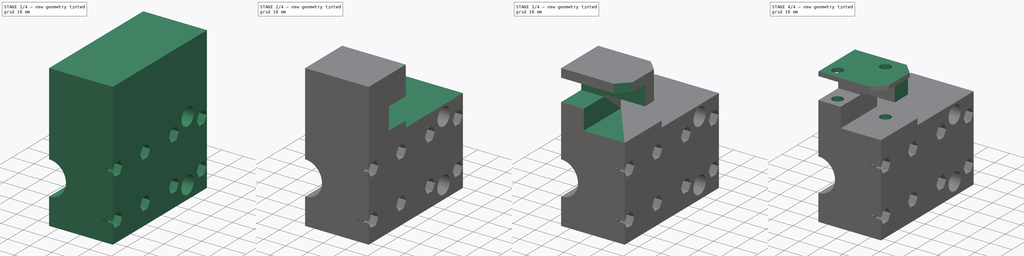
[diagram: build sequence overview — one tinted view per stage of 4, left to right]
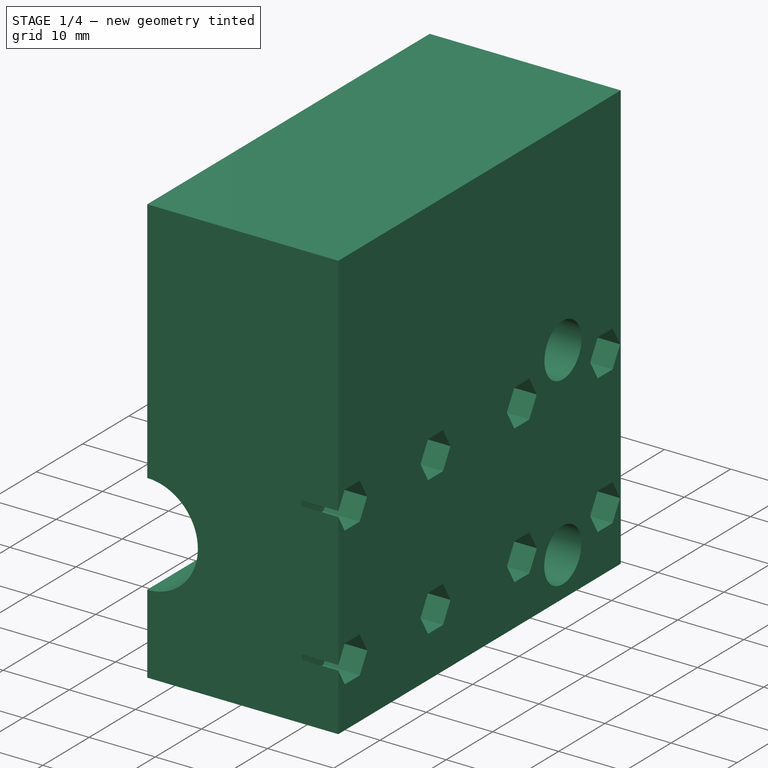
[diagram: stage 1 of 4 — iso view after this stage's code; geometry added in this stage tinted green]
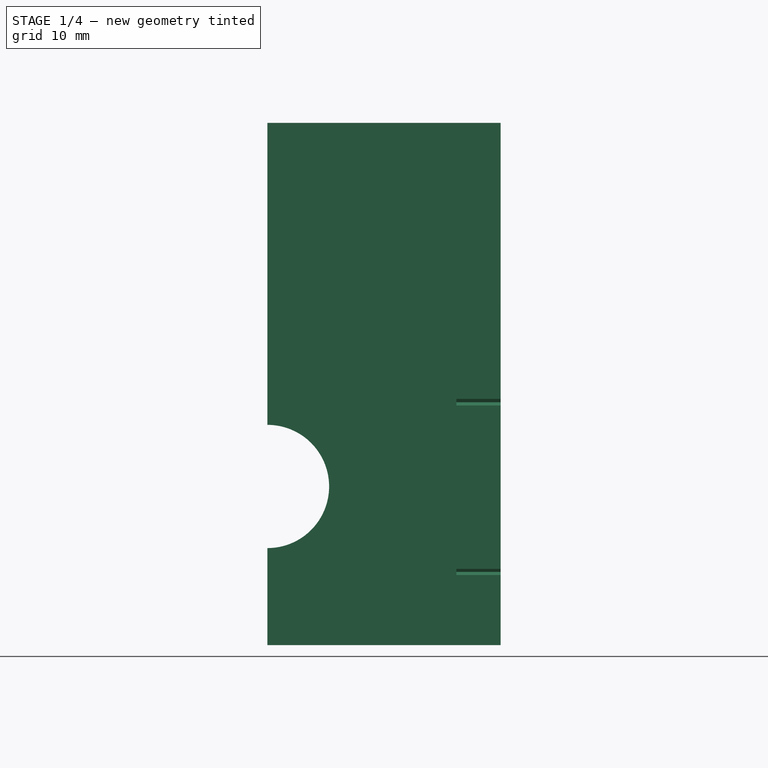
[diagram: stage 1 of 4 — front view after this stage's code; geometry added in this stage tinted green]
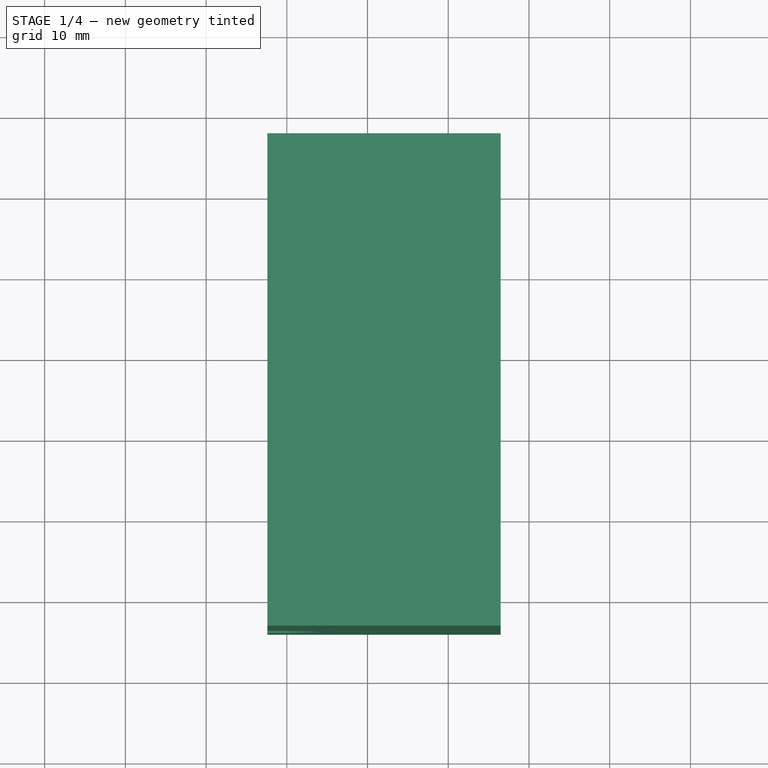
[diagram: stage 1 of 4 — top view after this stage's code; geometry added in this stage tinted green]
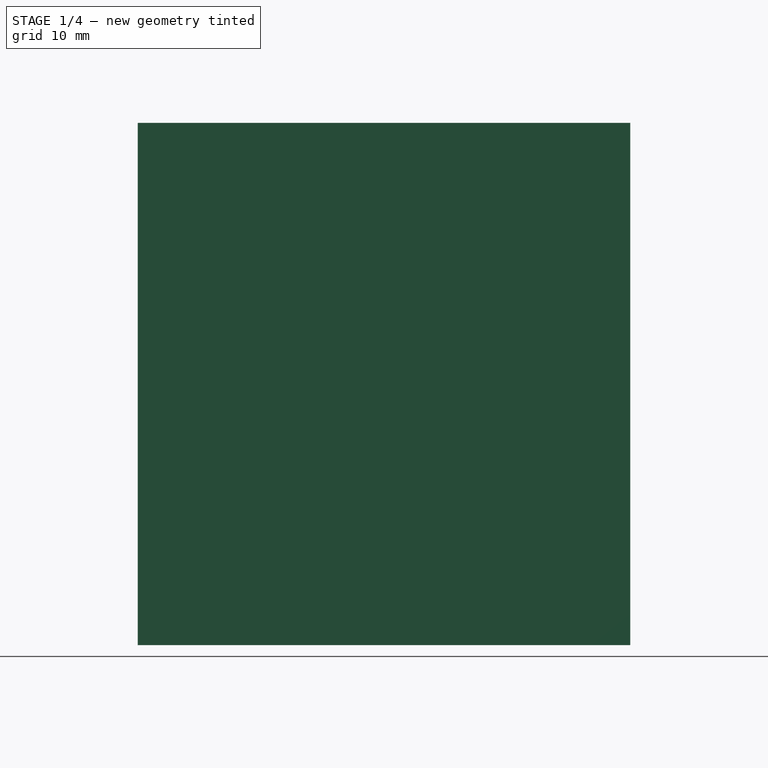
[diagram: stage 1 of 4 — right view after this stage's code; geometry added in this stage tinted green]
FCSTD DOCUMENT  (FreeCAD 2024.2R37179 (Git))
Label: Y_carriage_left
License: All rights reserved
LicenseURL: http://en.wikipedia.org/wiki/All_rights_reserved
objects: PartDesign::Pocket×13, Sketcher::SketchObject×12, PartDesign::Pad×1, PartDesign::Body×1
note: 41 computed .brp shape members not serialized (recipe doc carries the construction recipe); baked Part::Feature solids carry a one-line shape summary decoded from their .brp

FEATURE [Sketcher::SketchObject] Sketch
  AttachmentSupport = -> [XY_Plane]
  FullyConstrained = false
  MapMode = 5
  sketch-geometry (4):
    g0: LineSegment StartX=-182.406 StartY=-24 StartZ=0 EndX=-153.514 EndY=-24 EndZ=0
    g1: LineSegment StartX=-153.514 StartY=-24 StartZ=0 EndX=-153.514 EndY=37 EndZ=0
    g2: LineSegment StartX=-153.514 StartY=37 StartZ=0 EndX=-182.406 EndY=37 EndZ=0
    g3: LineSegment StartX=-182.406 StartY=37 StartZ=0 EndX=-182.406 EndY=-24 EndZ=0
  constraints (8):
    c: Coincident(g0,g1)
    c: Coincident(g1,g2)
    c: Coincident(g2,g3)
    c: Coincident(g3,g0)
    c: Horizontal(g0)
    c: Horizontal(g2)
    c: Vertical(g1)
    c: Vertical(g3)
FEATURE [PartDesign::Pad] Pad
  Direction = (0,0,1)
  Length = 64.706
  Length2 = 10
  Profile = -> Sketch
  ReferenceAxis = -> Sketch [N_Axis]
  Refine = true
  Suppressed = false
  Type = 0
FEATURE [Sketcher::SketchObject] Sketch001
  AttachmentSupport = -> [Pad]
  FullyConstrained = false
  MapMode = 5
  Placement = pos=(-153.514,0,0) rot=(0.57735,0.57735,0.57735;2.0944rad)
  sketch-geometry (56):
    g0: LineSegment StartX=0.227114 StartY=30.1177 StartZ=0 EndX=-1.38989 EndY=32.9184 EndZ=0
    g1: LineSegment StartX=-1.38989 StartY=32.9184 StartZ=0 EndX=-4.62389 EndY=32.9184 EndZ=0
    g2: LineSegment StartX=-4.62389 StartY=32.9184 StartZ=0 EndX=-6.24089 EndY=30.1177 EndZ=0
    g3: LineSegment StartX=-6.24089 StartY=30.1177 StartZ=0 EndX=-4.62389 EndY=27.317 EndZ=0
    g4: LineSegment StartX=-4.62389 StartY=27.317 StartZ=0 EndX=-1.38989 EndY=27.317 EndZ=0
    g5: LineSegment StartX=-1.38989 StartY=27.317 StartZ=0 EndX=0.227114 EndY=30.1177 EndZ=0
    g6: Circle CenterX=-3.00689 CenterY=30.1177 CenterZ=0 NormalX=0 NormalY=0 NormalZ=1 AngleXU=0 Radius=3.234
    g7: LineSegment StartX=18.8649 StartY=30.0627 StartZ=0 EndX=17.2479 EndY=32.8635 EndZ=0
    g8: LineSegment StartX=17.2479 StartY=32.8635 StartZ=0 EndX=14.0139 EndY=32.8635 EndZ=0
    g9: LineSegment StartX=14.0139 StartY=32.8635 StartZ=0 EndX=12.3969 EndY=30.0627 EndZ=0
    g10: LineSegment StartX=12.3969 StartY=30.0627 StartZ=0 EndX=14.0139 EndY=27.262 EndZ=0
    g11: LineSegment StartX=14.0139 StartY=27.262 StartZ=0 EndX=17.2479 EndY=27.262 EndZ=0
    g12: LineSegment StartX=17.2479 StartY=27.262 StartZ=0 EndX=18.8649 EndY=30.0627 EndZ=0
    g13: Circle CenterX=15.6309 CenterY=30.0627 CenterZ=0 NormalX=0 NormalY=0 NormalZ=1 AngleXU=0 Radius=3.234
    g14: LineSegment StartX=36.8705 StartY=30.0425 StartZ=0 EndX=35.2535 EndY=32.8432 EndZ=0
    g15: LineSegment StartX=35.2535 StartY=32.8432 StartZ=0 EndX=32.0195 EndY=32.8432 EndZ=0
    g16: LineSegment StartX=32.0195 StartY=32.8432 StartZ=0 EndX=30.4025 EndY=30.0425 EndZ=0
    g17: LineSegment StartX=30.4025 StartY=30.0425 StartZ=0 EndX=32.0195 EndY=27.2418 EndZ=0
    g18: LineSegment StartX=32.0195 StartY=27.2418 StartZ=0 EndX=35.2535 EndY=27.2418 EndZ=0
    g19: LineSegment StartX=35.2535 StartY=27.2418 StartZ=0 EndX=36.8705 EndY=30.0425 EndZ=0
    g20: Circle CenterX=33.6365 CenterY=30.0425 CenterZ=0 NormalX=0 NormalY=0 NormalZ=1 AngleXU=0 Radius=3.234
    g21: LineSegment StartX=-17.7521 StartY=9.07441 StartZ=0 EndX=-19.3691 EndY=11.8751 EndZ=0
    g22: LineSegment StartX=-19.3691 StartY=11.8751 StartZ=0 EndX=-22.6031 EndY=11.8751 EndZ=0
    g23: LineSegment StartX=-22.6031 StartY=11.8751 StartZ=0 EndX=-24.2201 EndY=9.07441 EndZ=0
    g24: LineSegment StartX=-24.2201 StartY=9.07441 StartZ=0 EndX=-22.6031 EndY=6.27368 EndZ=0
    g25: LineSegment StartX=-22.6031 StartY=6.27368 StartZ=0 EndX=-19.3691 EndY=6.27368 EndZ=0
    g26: LineSegment StartX=-19.3691 StartY=6.27368 StartZ=0 EndX=-17.7521 EndY=9.07441 EndZ=0
    g27: Circle CenterX=-20.9861 CenterY=9.07441 CenterZ=0 NormalX=0 NormalY=0 NormalZ=1 AngleXU=0 Radius=3.234
    g28: LineSegment StartX=0.225859 StartY=9.10068 StartZ=0 EndX=-1.39114 EndY=11.9014 EndZ=0
    g29: LineSegment StartX=-1.39114 StartY=11.9014 StartZ=0 EndX=-4.62514 EndY=11.9014 EndZ=0
    g30: LineSegment StartX=-4.62514 StartY=11.9014 StartZ=0 EndX=-6.24214 EndY=9.10068 EndZ=0
    g31: LineSegment StartX=-6.24214 StartY=9.10068 StartZ=0 EndX=-4.62514 EndY=6.29995 EndZ=0
    g32: LineSegment StartX=-4.62514 StartY=6.29995 StartZ=0 EndX=-1.39114 EndY=6.29995 EndZ=0
    g33: LineSegment StartX=-1.39114 StartY=6.29995 StartZ=0 EndX=0.225859 EndY=9.10068 EndZ=0
    g34: Circle CenterX=-3.00814 CenterY=9.10068 CenterZ=0 NormalX=0 NormalY=0 NormalZ=1 AngleXU=0 Radius=3.234
    g35: LineSegment StartX=36.8603 StartY=9.03234 StartZ=0 EndX=35.2433 EndY=11.8331 EndZ=0
    g36: LineSegment StartX=35.2433 StartY=11.8331 StartZ=0 EndX=32.0093 EndY=11.8331 EndZ=0
    g37: LineSegment StartX=32.0093 StartY=11.8331 StartZ=0 EndX=30.3923 EndY=9.03234 EndZ=0
    g38: LineSegment StartX=30.3923 StartY=9.03234 StartZ=0 EndX=32.0093 EndY=6.23161 EndZ=0
    g39: LineSegment StartX=32.0093 StartY=6.23161 StartZ=0 EndX=35.2433 EndY=6.23161 EndZ=0
    g40: LineSegment StartX=35.2433 StartY=6.23161 StartZ=0 EndX=36.8603 EndY=9.03234 EndZ=0
    g41: Circle CenterX=33.6263 CenterY=9.03234 CenterZ=0 NormalX=0 NormalY=0 NormalZ=1 AngleXU=0 Radius=3.234
    g42: LineSegment StartX=18.8907 StartY=9.033 StartZ=0 EndX=17.2737 EndY=11.8337 EndZ=0
    g43: LineSegment StartX=17.2737 StartY=11.8337 StartZ=0 EndX=14.0397 EndY=11.8337 EndZ=0
    g44: LineSegment StartX=14.0397 StartY=11.8337 StartZ=0 EndX=12.4227 EndY=9.033 EndZ=0
    g45: LineSegment StartX=12.4227 StartY=9.033 StartZ=0 EndX=14.0397 EndY=6.23227 EndZ=0
    g46: LineSegment StartX=14.0397 StartY=6.23227 StartZ=0 EndX=17.2737 EndY=6.23227 EndZ=0
    g47: LineSegment StartX=17.2737 StartY=6.23227 StartZ=0 EndX=18.8907 EndY=9.033 EndZ=0
    g48: Circle CenterX=15.6567 CenterY=9.033 CenterZ=0 NormalX=0 NormalY=0 NormalZ=1 AngleXU=0 Radius=3.234
    g49: LineSegment StartX=-17.7704 StartY=30.0953 StartZ=0 EndX=-19.3874 EndY=32.896 EndZ=0
    g50: LineSegment StartX=-19.3874 StartY=32.896 StartZ=0 EndX=-22.6214 EndY=32.896 EndZ=0
    g51: LineSegment StartX=-22.6214 StartY=32.896 StartZ=0 EndX=-24.2384 EndY=30.0953 EndZ=0
    g52: LineSegment StartX=-24.2384 StartY=30.0953 StartZ=0 EndX=-22.6214 EndY=27.2945 EndZ=0
    g53: LineSegment StartX=-22.6214 StartY=27.2945 StartZ=0 EndX=-19.3874 EndY=27.2945 EndZ=0
    g54: LineSegment StartX=-19.3874 StartY=27.2945 StartZ=0 EndX=-17.7704 EndY=30.0953 EndZ=0
    g55: Circle CenterX=-21.0044 CenterY=30.0953 CenterZ=0 NormalX=0 NormalY=0 NormalZ=1 AngleXU=0 Radius=3.234
  constraints (112):
    c: Coincident(g0,g1)
    c: Coincident(g1,g2)
    c: Coincident(g2,g3)
    c: Coincident(g3,g4)
    c: Coincident(g4,g5)
    c: Coincident(g5,g0)
    c: Equal(g0, g1-g5) x5
    c: PointOnObject(g0,g6)
    c: PointOnObject(g1,g6)
    c: PointOnObject(g2,g6)
    c: PointOnObject(g3,g6)
    c: PointOnObject(g4,g6)
    c: PointOnObject(g5,g6)
    c: Radius(g6) = 3.234
    c: Coincident(g7,g8)
    c: Coincident(g8,g9)
    c: Coincident(g9,g10)
    c: Coincident(g10,g11)
    c: Coincident(g11,g12)
    c: Coincident(g12,g7)
    c: Equal(g7, g8-g12) x5
    c: PointOnObject(g7,g13)
    c: PointOnObject(g8,g13)
    c: PointOnObject(g9,g13)
    c: PointOnObject(g10,g13)
    c: PointOnObject(g11,g13)
    c: PointOnObject(g12,g13)
    c: Radius(g13) = 3.234
    c: Coincident(g14,g15)
    c: Coincident(g15,g16)
    c: Coincident(g16,g17)
    c: Coincident(g17,g18)
    c: Coincident(g18,g19)
    c: Coincident(g19,g14)
    c: Equal(g14, g15-g19) x5
    c: PointOnObject(g14,g20)
    c: PointOnObject(g15,g20)
    c: PointOnObject(g16,g20)
    c: PointOnObject(g17,g20)
    c: PointOnObject(g18,g20)
    c: PointOnObject(g19,g20)
    c: Radius(g20) = 3.234
    c: Coincident(g21,g22)
    c: Coincident(g22,g23)
    c: Coincident(g23,g24)
    c: Coincident(g24,g25)
    c: Coincident(g25,g26)
    c: Coincident(g26,g21)
    c: Equal(g21, g22-g26) x5
    c: PointOnObject(g21,g27)
    c: PointOnObject(g22,g27)
    c: PointOnObject(g23,g27)
    c: PointOnObject(g24,g27)
    c: PointOnObject(g25,g27)
    c: PointOnObject(g26,g27)
    c: Radius(g27) = 3.234
    c: Coincident(g28,g29)
    c: Coincident(g29,g30)
    c: Coincident(g30,g31)
    c: Coincident(g31,g32)
    c: Coincident(g32,g33)
    c: Coincident(g33,g28)
    c: Equal(g28, g29-g33) x5
    c: PointOnObject(g28,g34)
    c: PointOnObject(g29,g34)
    c: PointOnObject(g30,g34)
    c: PointOnObject(g31,g34)
    c: PointOnObject(g32,g34)
    c: PointOnObject(g33,g34)
    c: Radius(g34) = 3.234
    c: Coincident(g35,g36)
    c: Coincident(g36,g37)
    c: Coincident(g37,g38)
    c: Coincident(g38,g39)
    c: Coincident(g39,g40)
    c: Coincident(g40,g35)
    c: Equal(g35, g36-g40) x5
    c: PointOnObject(g35,g41)
    c: PointOnObject(g36,g41)
    c: PointOnObject(g37,g41)
    c: PointOnObject(g38,g41)
    c: PointOnObject(g39,g41)
    c: PointOnObject(g40,g41)
    c: Radius(g41) = 3.234
    c: Coincident(g42,g43)
    c: Coincident(g43,g44)
    c: Coincident(g44,g45)
    c: Coincident(g45,g46)
    c: Coincident(g46,g47)
    c: Coincident(g47,g42)
    c: Equal(g42, g43-g47) x5
    c: PointOnObject(g42,g48)
    c: PointOnObject(g43,g48)
    c: PointOnObject(g44,g48)
    c: PointOnObject(g45,g48)
    c: PointOnObject(g46,g48)
    c: PointOnObject(g47,g48)
    c: Radius(g48) = 3.234
    c: Coincident(g49,g50)
    c: Coincident(g50,g51)
    c: Coincident(g51,g52)
    c: Coincident(g52,g53)
    c: Coincident(g53,g54)
    c: Coincident(g54,g49)
    c: Equal(g49, g50-g54) x5
    c: PointOnObject(g49,g55)
    c: PointOnObject(g50,g55)
    c: PointOnObject(g51,g55)
    c: PointOnObject(g52,g55)
    c: PointOnObject(g53,g55)
    c: PointOnObject(g54,g55)
    c: Radius(g55) = 3.234
FEATURE [PartDesign::Pocket] Pocket
  BaseFeature = -> Pad
  Direction = (-1,0,0)
  Length = 5.486
  Length2 = 5
  Profile = -> Sketch001
  ReferenceAxis = -> Sketch001 [N_Axis]
  Refine = true
  Suppressed = false
  Type = 0
FEATURE [Sketcher::SketchObject] Sketch002
  AttachmentSupport = -> [Pocket]
  FullyConstrained = false
  MapMode = 5
  Placement = pos=(-153.514,0,0) rot=(0.57735,0.57735,0.57735;2.0944rad)
  sketch-geometry (2):
    g0: Circle CenterX=24.5259 CenterY=33.9789 CenterZ=0 NormalX=0 NormalY=0 NormalZ=1 AngleXU=0 Radius=4.00076
    g1: Circle CenterX=24.4831 CenterY=5.98717 CenterZ=0 NormalX=0 NormalY=0 NormalZ=1 AngleXU=0 Radius=4.0009
FEATURE [PartDesign::Pocket] Pocket013
  BaseFeature = -> Pocket
  Direction = (-1,0,0)
  Length = 28.147
  Length2 = 5
  Profile = -> Sketch002
  ReferenceAxis = -> Sketch002 [N_Axis]
  Refine = true
  Suppressed = false
  Type = 0
FEATURE [Sketcher::SketchObject] Sketch003
  AttachmentSupport = -> [Pocket013]
  FullyConstrained = false
  MapMode = 5
  Placement = pos=(0,-24,0) rot=(1,0,0;1.5708rad)
  sketch-geometry (1):
    g0: Circle CenterX=-182.393 CenterY=19.6585 CenterZ=0 NormalX=0 NormalY=0 NormalZ=1 AngleXU=0 Radius=7.63388
FEATURE [PartDesign::Pocket] Pocket014
  BaseFeature = -> Pocket013
  Direction = (0,1,-2e-16)
  Length = 90
  Length2 = 5
  Profile = -> Sketch003
  ReferenceAxis = -> Sketch003 [N_Axis]
  Refine = true
  Suppressed = false
  Type = 0
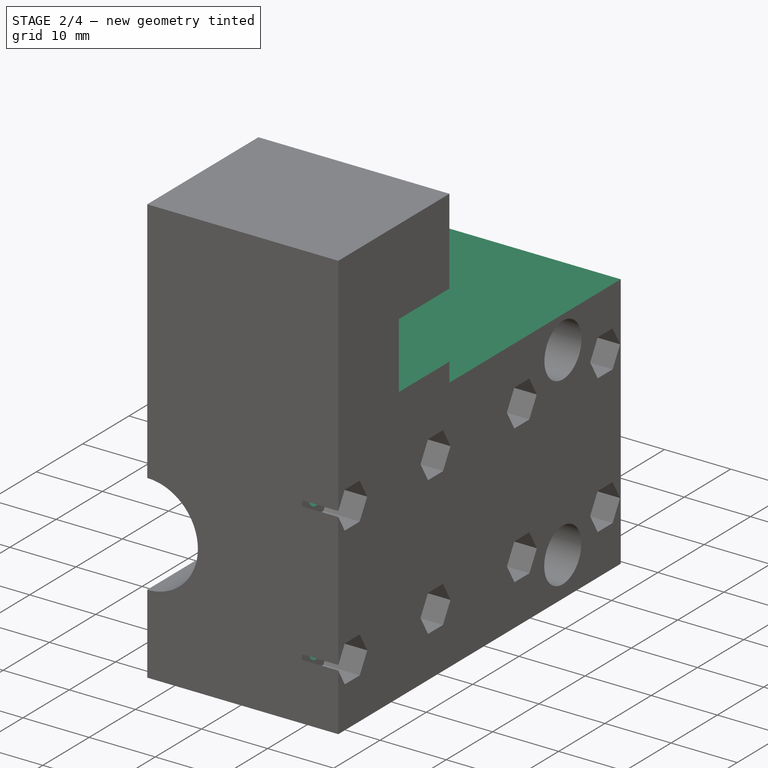
[diagram: stage 2 of 4 — iso view after this stage's code; geometry added in this stage tinted green]
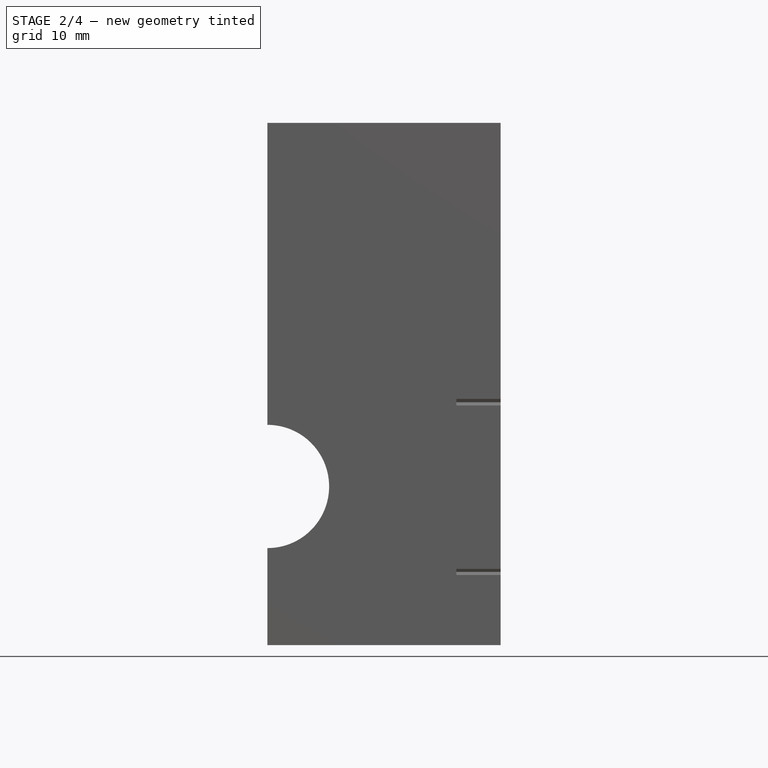
[diagram: stage 2 of 4 — front view after this stage's code; geometry added in this stage tinted green]
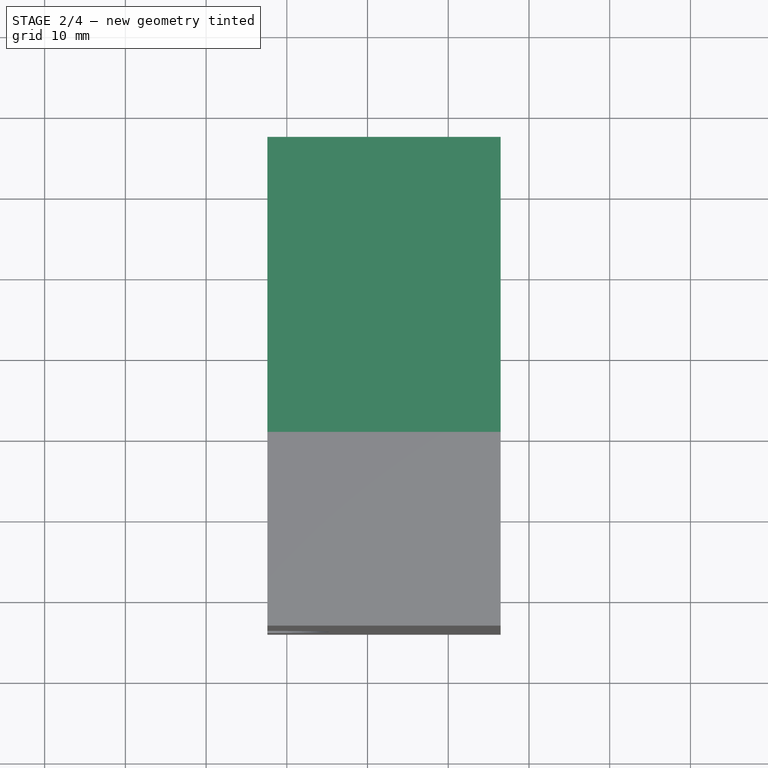
[diagram: stage 2 of 4 — top view after this stage's code; geometry added in this stage tinted green]
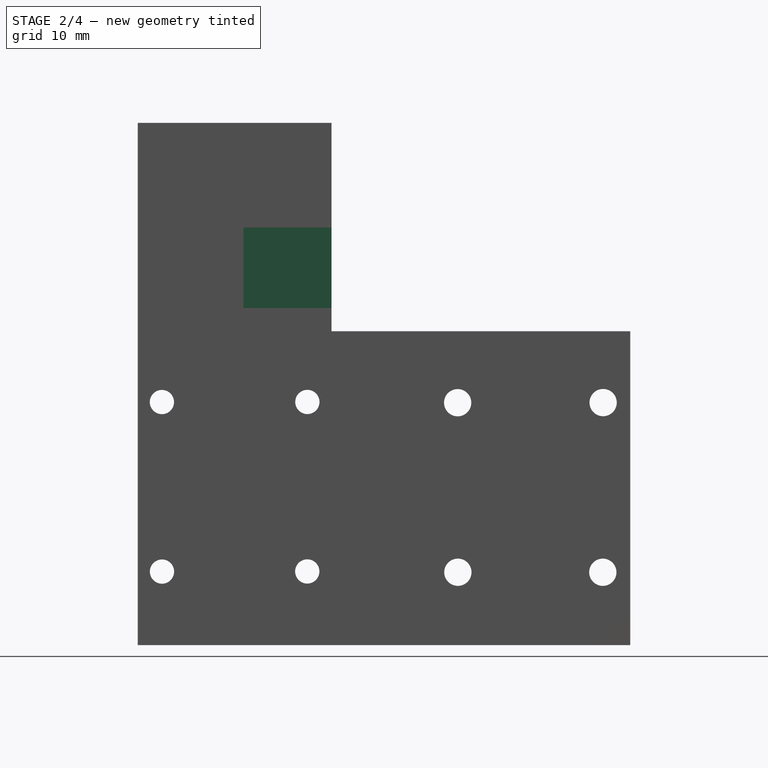
[diagram: stage 2 of 4 — right view after this stage's code; geometry added in this stage tinted green]
FEATURE [Sketcher::SketchObject] Sketch004
  AttachmentSupport = -> [Pocket014]
  FullyConstrained = false
  MapMode = 5
  Placement = pos=(-153.514,0,0) rot=(0.57735,0.57735,0.57735;2.0944rad)
  sketch-geometry (8):
    g0: Circle CenterX=-2.99299 CenterY=30.1285 CenterZ=0 NormalX=0 NormalY=0 NormalZ=1 AngleXU=0 Radius=1.50159
    g1: Circle CenterX=15.6504 CenterY=9.03195 CenterZ=0 NormalX=0 NormalY=0 NormalZ=1 AngleXU=0 Radius=1.68885
    g2: Circle CenterX=-21.0035 CenterY=9.11299 CenterZ=0 NormalX=0 NormalY=0 NormalZ=1 AngleXU=0 Radius=1.50159
    g3: Circle CenterX=-3.00721 CenterY=9.1307 CenterZ=0 NormalX=0 NormalY=0 NormalZ=1 AngleXU=0 Radius=1.50159
    g4: Circle CenterX=-21.0145 CenterY=30.1173 CenterZ=0 NormalX=0 NormalY=0 NormalZ=1 AngleXU=0 Radius=1.50159
    g5: Circle CenterX=33.6456 CenterY=30.0497 CenterZ=0 NormalX=0 NormalY=0 NormalZ=1 AngleXU=0 Radius=1.68885
    g6: Circle CenterX=33.6065 CenterY=9.03112 CenterZ=0 NormalX=0 NormalY=0 NormalZ=1 AngleXU=0 Radius=1.68885
    g7: Circle CenterX=15.6252 CenterY=30.0364 CenterZ=0 NormalX=0 NormalY=0 NormalZ=1 AngleXU=0 Radius=1.68885
FEATURE [PartDesign::Pocket] Pocket015
  BaseFeature = -> Pocket014
  Direction = (-1,0,0)
  Length = 71
  Length2 = 5
  Profile = -> Sketch004
  ReferenceAxis = -> Sketch004 [N_Axis]
  Refine = true
  Suppressed = false
  Type = 0
FEATURE [Sketcher::SketchObject] Sketch005
  AttachmentSupport = -> [Pocket015]
  FullyConstrained = false
  MapMode = 5
  Placement = pos=(-153.514,0,0) rot=(0.57735,0.57735,0.57735;2.0944rad)
  sketch-geometry (4):
    g0: LineSegment StartX=0 StartY=38.8812 StartZ=0 EndX=61.9401 EndY=38.8812 EndZ=0
    g1: LineSegment StartX=61.9401 StartY=38.8812 StartZ=0 EndX=61.9401 EndY=97.7584 EndZ=0
    g2: LineSegment StartX=61.9401 StartY=97.7584 StartZ=0 EndX=0 EndY=97.7584 EndZ=0
    g3: LineSegment StartX=0 StartY=97.7584 StartZ=0 EndX=0 EndY=38.8812 EndZ=0
  constraints (9):
    c: Coincident(g0,g1)
    c: Coincident(g1,g2)
    c: Coincident(g2,g3)
    c: Coincident(g3,g0)
    c: Horizontal(g0)
    c: Horizontal(g2)
    c: Vertical(g1)
    c: Vertical(g3)
    c: PointOnObject(g0,g-2)
FEATURE [PartDesign::Pocket] Pocket016
  BaseFeature = -> Pocket015
  Direction = (-1,0,0)
  Length = 34
  Length2 = 5
  Profile = -> Sketch005
  ReferenceAxis = -> Sketch005 [N_Axis]
  Refine = true
  Suppressed = false
  Type = 0
FEATURE [Sketcher::SketchObject] Sketch006
  AttachmentSupport = -> [Pocket016]
  FullyConstrained = false
  MapMode = 5
  Placement = pos=(-153.514,0,0) rot=(0.57735,0.57735,0.57735;2.0944rad)
  sketch-geometry (4):
    g0: LineSegment StartX=-10.9051 StartY=51.7478 StartZ=0 EndX=-10.9051 EndY=41.7667 EndZ=0
    g1: LineSegment StartX=-10.9051 StartY=41.7667 StartZ=0 EndX=0.659493 EndY=41.7667 EndZ=0
    g2: LineSegment StartX=0.659493 StartY=41.7667 StartZ=0 EndX=0.659493 EndY=51.7478 EndZ=0
    g3: LineSegment StartX=0.659493 StartY=51.7478 StartZ=0 EndX=-10.9051 EndY=51.7478 EndZ=0
  constraints (8):
    c: Coincident(g0,g1)
    c: Coincident(g1,g2)
    c: Coincident(g2,g3)
    c: Coincident(g3,g0)
    c: Vertical(g0)
    c: Vertical(g2)
    c: Horizontal(g1)
    c: Horizontal(g3)
FEATURE [PartDesign::Pocket] Pocket017
  BaseFeature = -> Pocket016
  Direction = (-1,0,0)
  Length = 18.59
  Length2 = 5
  Profile = -> Sketch006
  ReferenceAxis = -> Sketch006 [N_Axis]
  Refine = true
  Suppressed = false
  Type = 0
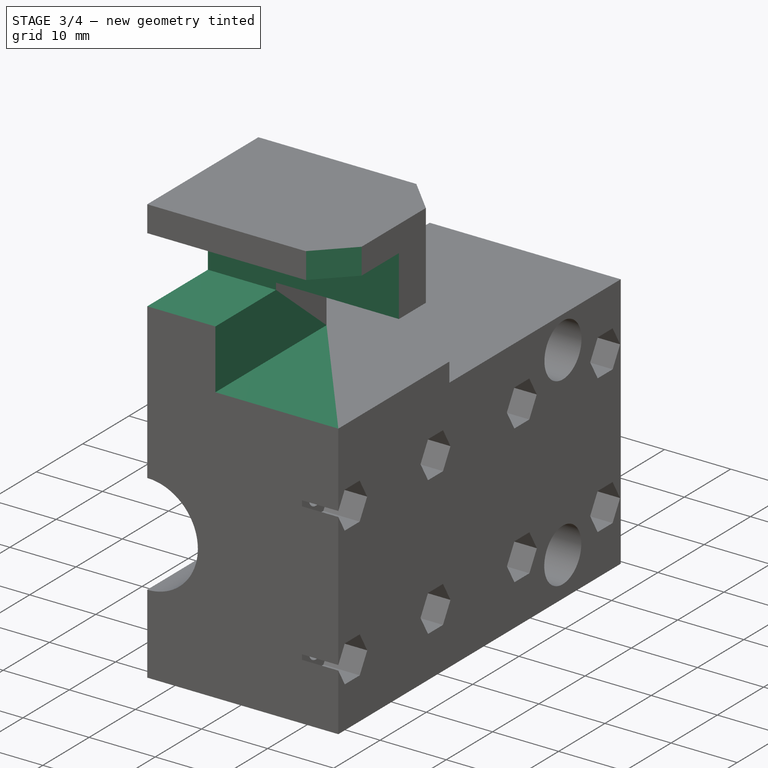
[diagram: stage 3 of 4 — iso view after this stage's code; geometry added in this stage tinted green]
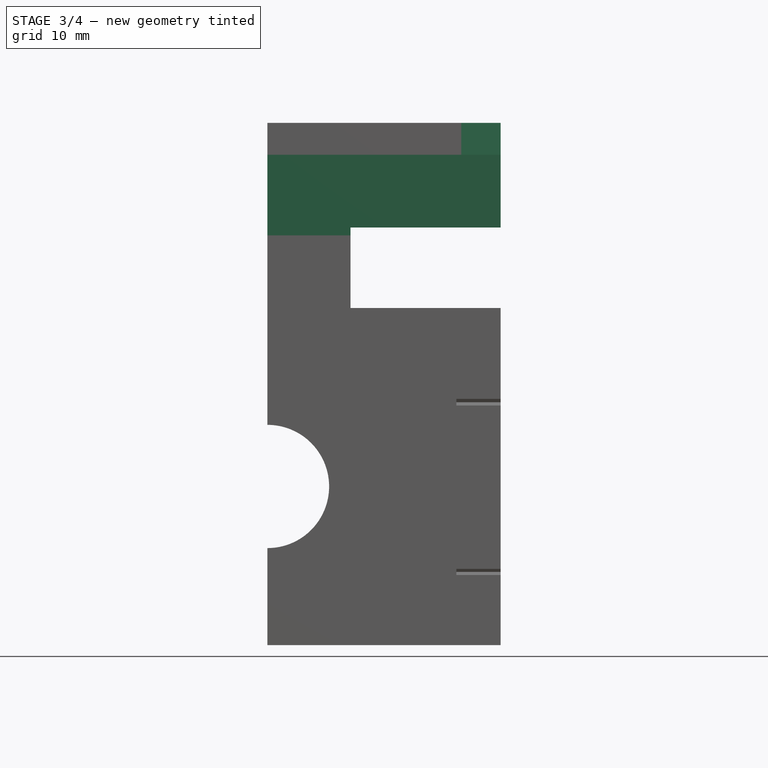
[diagram: stage 3 of 4 — front view after this stage's code; geometry added in this stage tinted green]
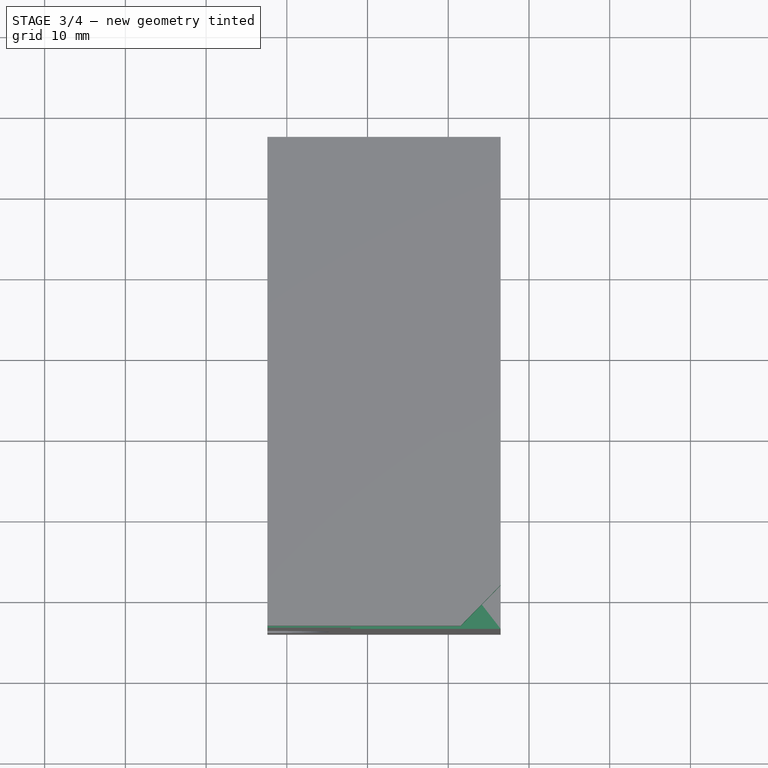
[diagram: stage 3 of 4 — top view after this stage's code; geometry added in this stage tinted green]
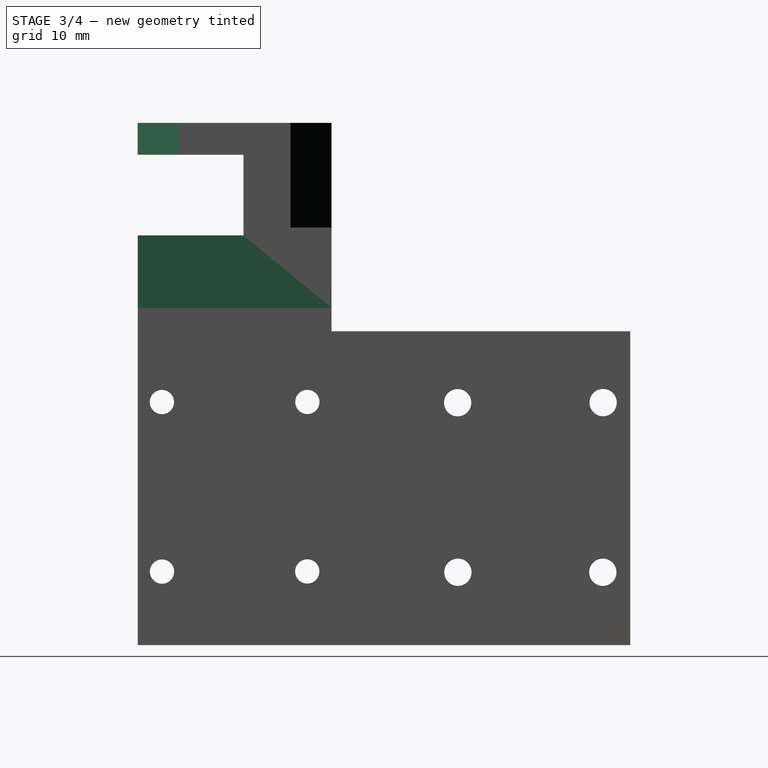
[diagram: stage 3 of 4 — right view after this stage's code; geometry added in this stage tinted green]
FEATURE [Sketcher::SketchObject] Sketch007
  AttachmentSupport = -> [Pocket017]
  FullyConstrained = false
  MapMode = 5
  Placement = pos=(0,0,64.706) rot=(0,0,1;0rad)
  sketch-geometry (6):
    g0: LineSegment StartX=-158.429 StartY=-23.9703 StartZ=0 EndX=-153.252 EndY=-18.7031 EndZ=0
    g1: LineSegment StartX=-153.252 StartY=-18.7031 StartZ=0 EndX=-151.098 EndY=-28.6993 EndZ=0
    g2: LineSegment StartX=-151.098 StartY=-28.6993 StartZ=0 EndX=-158.429 EndY=-23.9703 EndZ=0
    g3: LineSegment StartX=-153.521 StartY=-5.08418 StartZ=0 EndX=-159.13 EndY=0.622078 EndZ=0
    g4: LineSegment StartX=-159.13 StartY=0.622078 StartZ=0 EndX=-148.158 EndY=1.03342 EndZ=0
    g5: LineSegment StartX=-148.158 StartY=1.03342 StartZ=0 EndX=-153.521 EndY=-5.08418 EndZ=0
  constraints (6):
    c: Coincident(g0,g1)
    c: Coincident(g1,g2)
    c: Coincident(g2,g0)
    c: Coincident(g3,g4)
    c: Coincident(g4,g5)
    c: Coincident(g5,g3)
FEATURE [PartDesign::Pocket] Pocket018
  BaseFeature = -> Pocket017
  Direction = (0,0,-1)
  Length = 14
  Length2 = 5
  Profile = -> Sketch007
  ReferenceAxis = -> Sketch007 [N_Axis]
  Refine = true
  Suppressed = false
  Type = 0
FEATURE [Sketcher::SketchObject] Sketch008
  AttachmentSupport = -> [Pocket018]
  FullyConstrained = false
  MapMode = 5
  Placement = pos=(-182.406,0,0) rot=(0.57735,-0.57735,-0.57735;2.0944rad)
  sketch-geometry (4):
    g0: LineSegment StartX=10.9066 StartY=50.7605 StartZ=0 EndX=24.0004 EndY=50.7605 EndZ=0
    g1: LineSegment StartX=24.0004 StartY=50.7605 StartZ=0 EndX=24.0004 EndY=60.7599 EndZ=0
    g2: LineSegment StartX=24.0004 StartY=60.7599 StartZ=0 EndX=10.9066 EndY=60.7599 EndZ=0
    g3: LineSegment StartX=10.9066 StartY=60.7599 StartZ=0 EndX=10.9066 EndY=50.7605 EndZ=0
  constraints (8):
    c: Coincident(g0,g1)
    c: Coincident(g1,g2)
    c: Coincident(g2,g3)
    c: Coincident(g3,g0)
    c: Horizontal(g0)
    c: Horizontal(g2)
    c: Vertical(g1)
    c: Vertical(g3)
FEATURE [PartDesign::Pocket] Pocket019
  BaseFeature = -> Pocket018
  Direction = (1,0,0)
  Length = 38
  Length2 = 5
  Profile = -> Sketch008
  ReferenceAxis = -> Sketch008 [N_Axis]
  Refine = true
  Suppressed = false
  Type = 0
FEATURE [PartDesign::Pocket] Pocket020
  BaseFeature = -> Pocket019
  Direction = (0,-1,0)
  Length = 21
  Length2 = 5
  Profile = -> Pocket019 [Face20]
  Refine = true
  Suppressed = false
  Type = 0
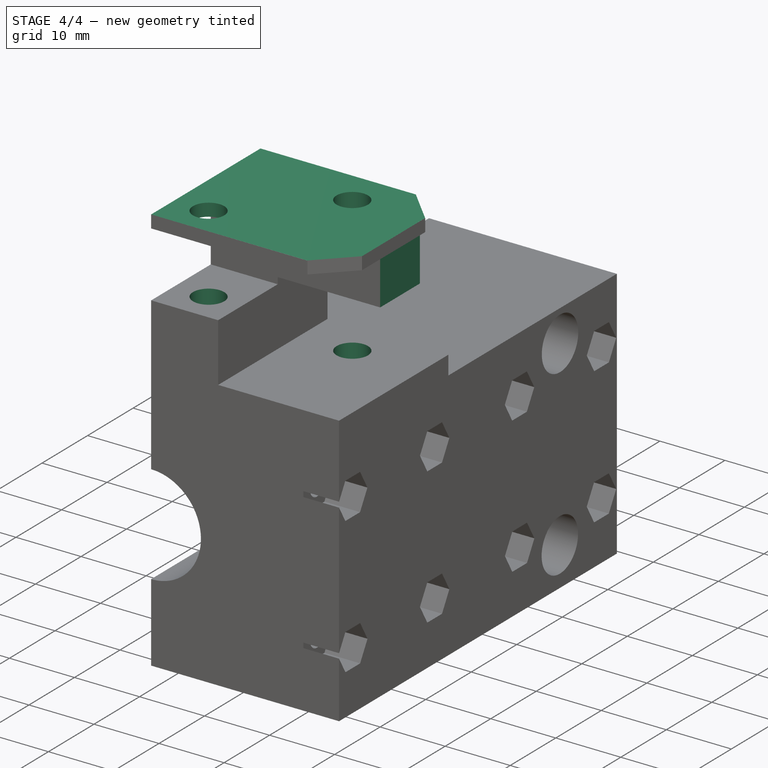
[diagram: stage 4 of 4 — iso view after this stage's code; geometry added in this stage tinted green]
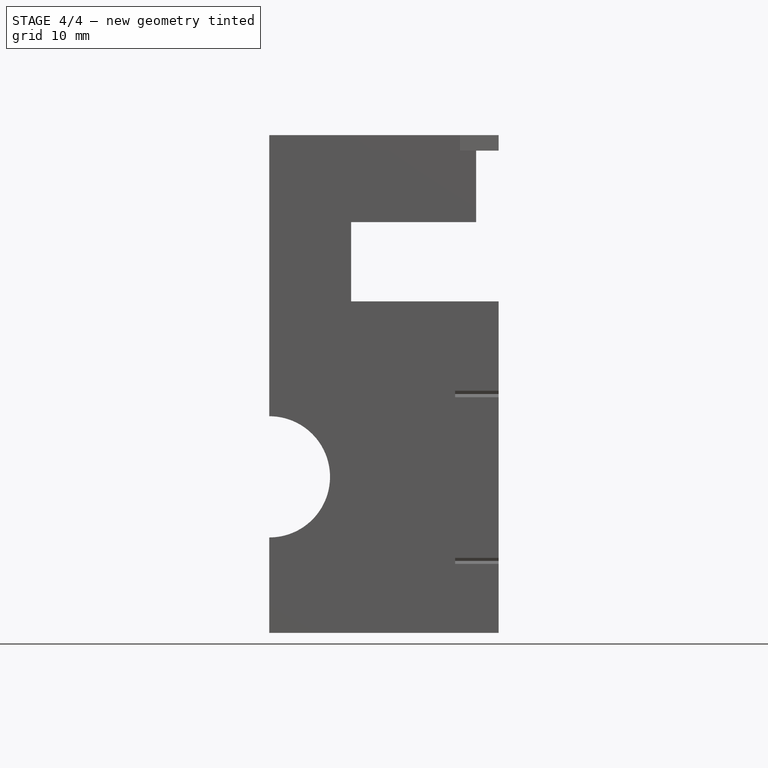
[diagram: stage 4 of 4 — front view after this stage's code; geometry added in this stage tinted green]
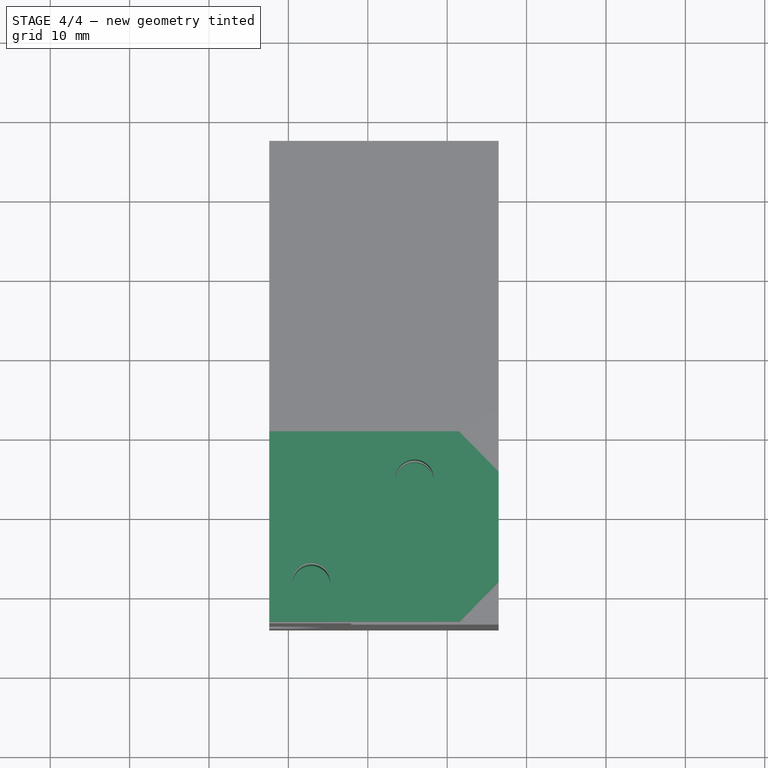
[diagram: stage 4 of 4 — top view after this stage's code; geometry added in this stage tinted green]
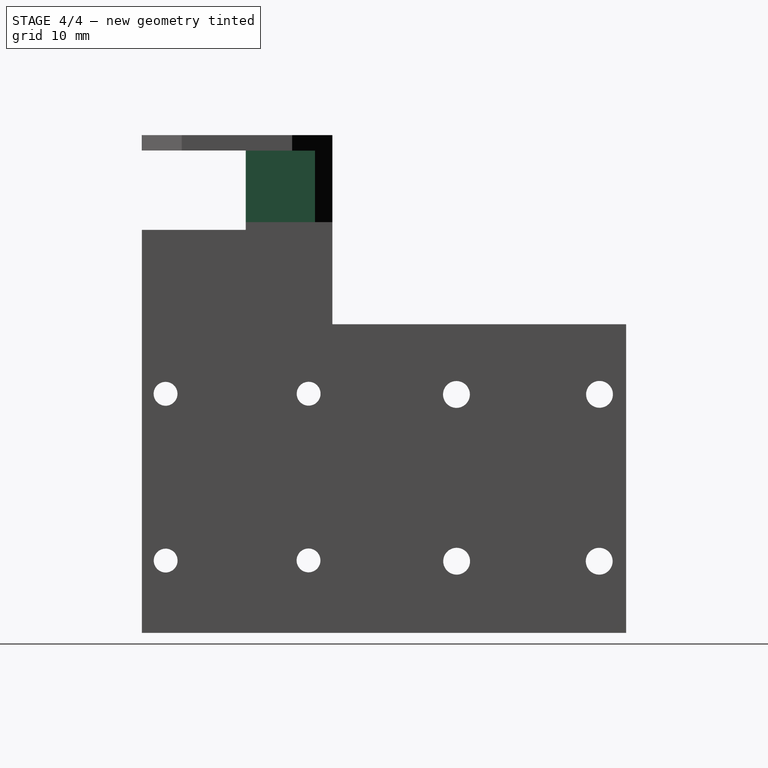
[diagram: stage 4 of 4 — right view after this stage's code; geometry added in this stage tinted green]
FEATURE [Sketcher::SketchObject] Sketch009
  AttachmentSupport = -> [Pocket020]
  FullyConstrained = false
  MapMode = 5
  Placement = pos=(0,0,64.706) rot=(0,0,1;0rad)
  sketch-geometry (1):
    g0: Circle CenterX=-177.111 CenterY=-18.9478 CenterZ=0 NormalX=0 NormalY=0 NormalZ=1 AngleXU=0 Radius=2.4005
FEATURE [PartDesign::Pocket] Pocket021
  BaseFeature = -> Pocket020
  Direction = (0,0,-1)
  Length = 27.202
  Length2 = 5
  Profile = -> Sketch009
  ReferenceAxis = -> Sketch009 [N_Axis]
  Refine = true
  Suppressed = false
  Type = 0
FEATURE [Sketcher::SketchObject] Sketch010
  AttachmentSupport = -> [Pocket021]
  FullyConstrained = false
  MapMode = 5
  Placement = pos=(0,0,64.706) rot=(0,0,1;0rad)
  sketch-geometry (1):
    g0: Circle CenterX=-164.117 CenterY=-5.94823 CenterZ=0 NormalX=0 NormalY=0 NormalZ=1 AngleXU=0 Radius=2.40903
FEATURE [PartDesign::Pocket] Pocket022
  BaseFeature = -> Pocket021
  Direction = (0,0,-1)
  Length = 27.378
  Length2 = 5
  Profile = -> Sketch010
  ReferenceAxis = -> Sketch010 [N_Axis]
  Refine = true
  Suppressed = false
  Type = 0
FEATURE [Sketcher::SketchObject] Sketch011
  AttachmentSupport = -> [Pocket022]
  FullyConstrained = false
  MapMode = 5
  Placement = pos=(0,-24,0) rot=(1,0,0;1.5708rad)
  sketch-geometry (4):
    g0: LineSegment StartX=-152.924 StartY=51.0893 StartZ=0 EndX=-152.924 EndY=60.752 EndZ=0
    g1: LineSegment StartX=-152.924 StartY=60.752 StartZ=0 EndX=-156.358 EndY=60.752 EndZ=0
    g2: LineSegment StartX=-156.358 StartY=60.752 StartZ=0 EndX=-156.358 EndY=51.0893 EndZ=0
    g3: LineSegment StartX=-156.358 StartY=51.0893 StartZ=0 EndX=-152.924 EndY=51.0893 EndZ=0
  constraints (8):
    c: Coincident(g0,g1)
    c: Coincident(g1,g2)
    c: Coincident(g2,g3)
    c: Coincident(g3,g0)
    c: Vertical(g0)
    c: Vertical(g2)
    c: Horizontal(g1)
    c: Horizontal(g3)
FEATURE [PartDesign::Pocket] Pocket023
  BaseFeature = -> Pocket022
  Direction = (0,1,-2e-16)
  Length = 54
  Length2 = 5
  Profile = -> Sketch011
  ReferenceAxis = -> Sketch011 [N_Axis]
  Refine = true
  Suppressed = false
  Type = 0
FEATURE [PartDesign::Pocket] Pocket024
  BaseFeature = -> Pocket023
  Direction = (0,0,-1)
  Length = 2
  Length2 = 5
  Profile = -> Pocket023 [Face73]
  Refine = true
  Suppressed = false
  Type = 0
FEATURE [PartDesign::Body] Body
  Group = -> [Sketch,Pad,Sketch001,Pocket,Sketch002,Pocket013,Sketch003,Pocket014,Sketch004,Pocket015,Sketch005,Pocket016,Sketch006,Pocket017,Sketch007,Pocket018,Sketch008,Pocket019,Pocket020,Sketch009,Pocket021,Sketch010,Pocket022,Sketch011,Pocket023,Pocket024]
  Origin = -> Origin
  Tip = -> Pocket024
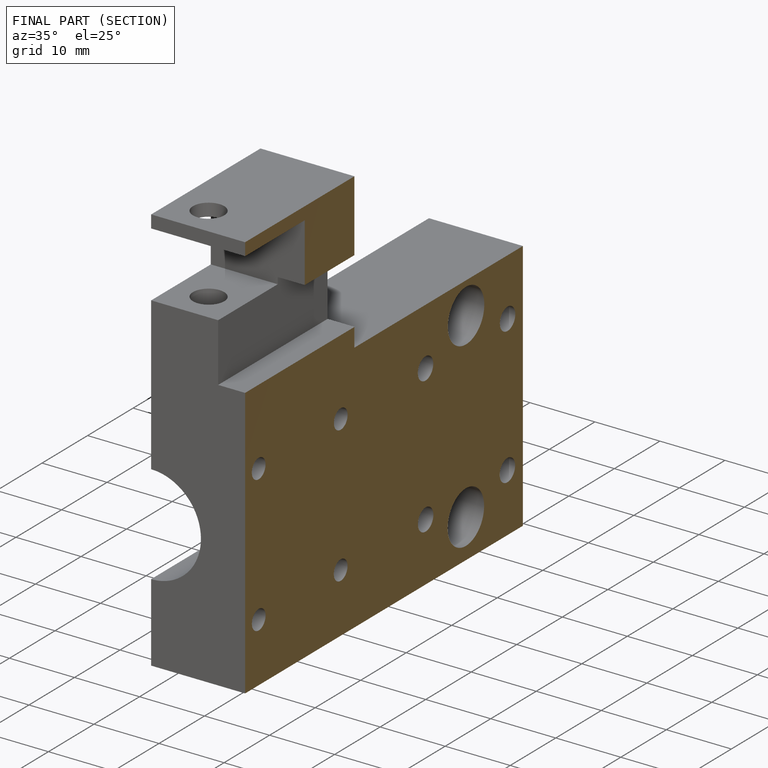
[diagram: finished part — half-section view (interior)]
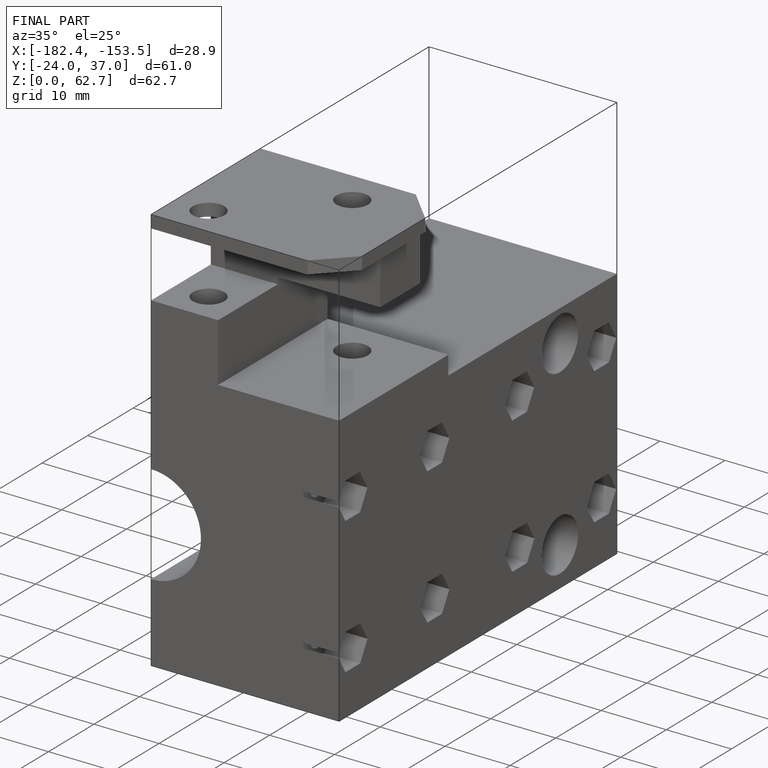
[diagram: finished part — iso view with bounding-box wireframe]
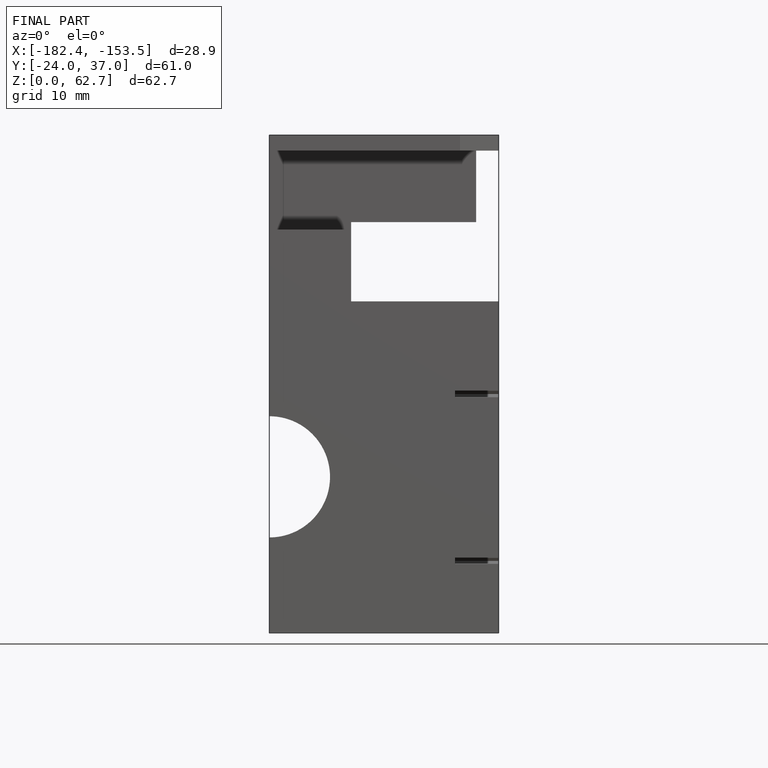
[diagram: finished part — front view with bounding-box wireframe]
